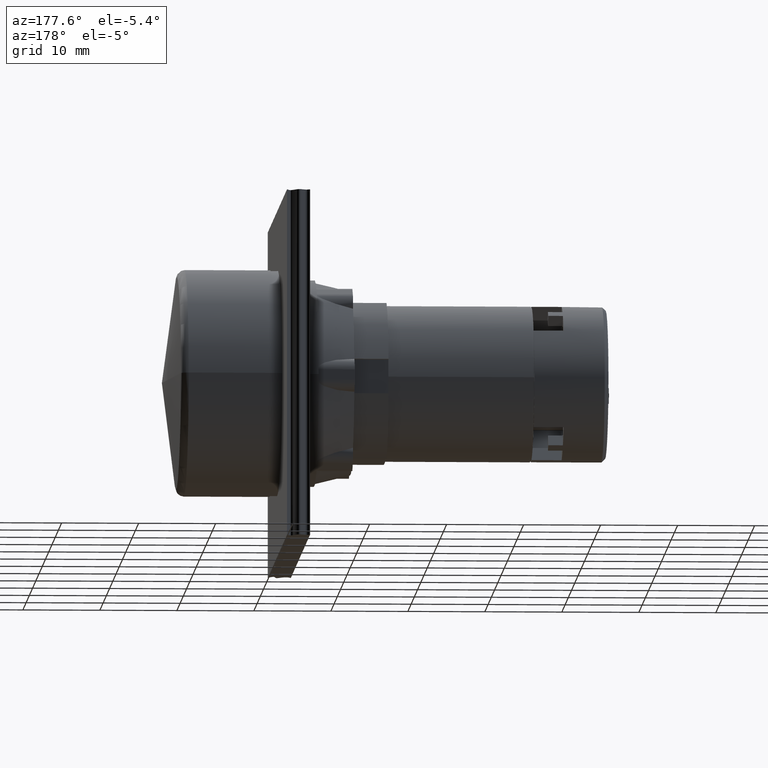
[diagram: clean part render]
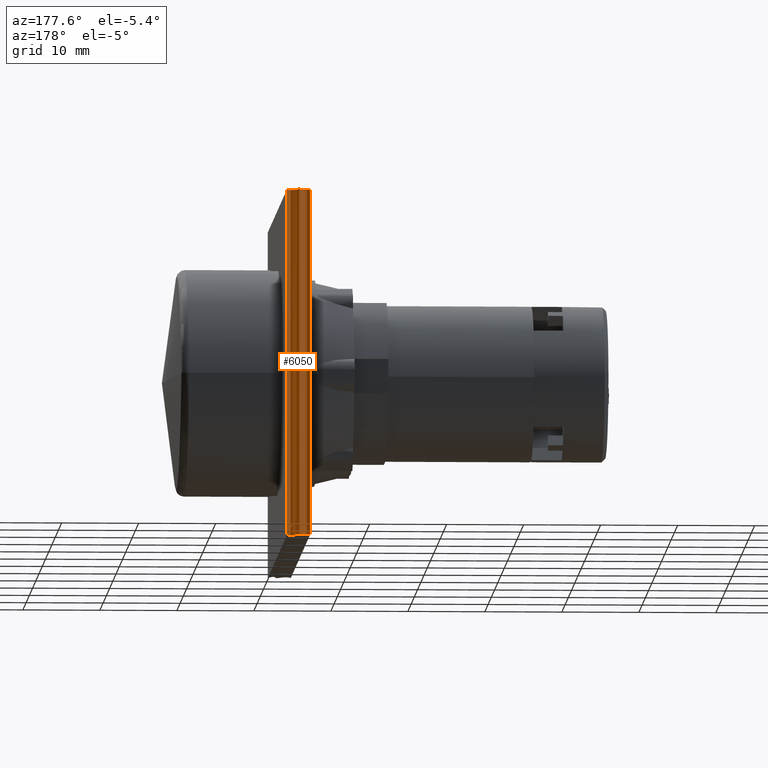
[diagram: same view with one face highlighted and labeled with its STEP entity id]
A machine part, auxiliary view. The second image highlights one B-rep face of the part: STEP entity #6050.
In plain terms, the highlighted face is a freeform B-spline surface patch.
Its self-contained STEP definition (entity closure, byte-faithful):
#6001=CARTESIAN_POINT('',(-12.704183619849175,-2.725398273954286,0.0));
#6002=CARTESIAN_POINT('',(-13.683988853155304,-7.243589001706696,0.0));
#6003=CARTESIAN_POINT('',(-13.964099132856656,2.032835085571791,0.0));
#6004=CARTESIAN_POINT('',(-14.667084388146536,-4.961008747338168,0.0));
#6005=CARTESIAN_POINT('',(-15.704183619849177,-2.725398273954286,0.0));
#6006=CARTESIAN_POINT('',(-12.704183619849175,-2.725398273954286,45.0));
#6007=CARTESIAN_POINT('',(-13.683988853155304,-7.243589001706696,45.0));
#6008=CARTESIAN_POINT('',(-13.964099132856656,2.032835085571791,45.0));
#6009=CARTESIAN_POINT('',(-14.667084388146536,-4.961008747338168,45.0));
#6010=CARTESIAN_POINT('',(-15.704183619849177,-2.725398273954286,45.0));
#6011=B_SPLINE_SURFACE_WITH_KNOTS('',4,1,((#6001,#6006),(#6002,#6007),(#6003,#6008),(#6004,#6009),(#6005,#6010)),.UNSPECIFIED.,.F.,.F.,.U.,(5,5),(2,2),(0.0,1.0),(0.0,4.500000000000000),.UNSPECIFIED.);
#6012=CARTESIAN_POINT('',(-15.704183619849179,-2.725398273954287,45.0));
#6013=VERTEX_POINT('',#6012);
#6014=CARTESIAN_POINT('',(-12.704183619849179,-2.725398273954287,45.0));
#6015=VERTEX_POINT('',#6014);
#6016=CARTESIAN_POINT('',(-15.704183619849177,-2.725398273954286,45.0));
#6017=CARTESIAN_POINT('',(-14.667084388146536,-4.961008747338168,45.0));
#6018=CARTESIAN_POINT('',(-13.964099132856656,2.032835085571791,45.0));
#6019=CARTESIAN_POINT('',(-13.683988853155304,-7.243589001706696,45.0));
#6020=CARTESIAN_POINT('',(-12.704183619849175,-2.725398273954286,45.0));
#6021=QUASI_UNIFORM_CURVE('',4,(#6016,#6017,#6018,#6019,#6020),.UNSPECIFIED.,.F.,.U.);
#6022=EDGE_CURVE('',#6013,#6015,#6021,.T.);
#6023=ORIENTED_EDGE('',*,*,#6022,.T.);
#6024=CARTESIAN_POINT('',(-12.704183619849179,-2.725398273954287,0.0));
#6025=VERTEX_POINT('',#6024);
#6026=CARTESIAN_POINT('',(-12.704183619849179,-2.725398273954287,0.0));
#6027=DIRECTION('',(0.0,0.0,1.0));
#6028=VECTOR('',#6027,45.0);
#6029=LINE('',#6026,#6028);
#6030=EDGE_CURVE('',#6025,#6015,#6029,.T.);
#6031=ORIENTED_EDGE('',*,*,#6030,.F.);
#6032=CARTESIAN_POINT('',(-15.704183619849179,-2.725398273954287,0.0));
#6033=VERTEX_POINT('',#6032);
#6034=CARTESIAN_POINT('',(-12.704183619849175,-2.725398273954286,0.0));
#6035=CARTESIAN_POINT('',(-13.683988853155304,-7.243589001706696,0.0));
#6036=CARTESIAN_POINT('',(-13.964099132856656,2.032835085571791,0.0));
#6037=CARTESIAN_POINT('',(-14.667084388146536,-4.961008747338168,0.0));
#6038=CARTESIAN_POINT('',(-15.704183619849177,-2.725398273954286,0.0));
#6039=QUASI_UNIFORM_CURVE('',4,(#6034,#6035,#6036,#6037,#6038),.UNSPECIFIED.,.F.,.U.);
#6040=EDGE_CURVE('',#6025,#6033,#6039,.T.);
#6041=ORIENTED_EDGE('',*,*,#6040,.T.);
#6042=CARTESIAN_POINT('',(-15.704183619849179,-2.725398273954287,0.0));
#6043=DIRECTION('',(0.0,0.0,1.0));
#6044=VECTOR('',#6043,45.0);
#6045=LINE('',#6042,#6044);
#6046=EDGE_CURVE('',#6033,#6013,#6045,.T.);
#6047=ORIENTED_EDGE('',*,*,#6046,.T.);
#6048=EDGE_LOOP('',(#6023,#6031,#6041,#6047));
#6049=FACE_OUTER_BOUND('',#6048,.T.);
#6050=ADVANCED_FACE('',(#6049),#6011,.T.);